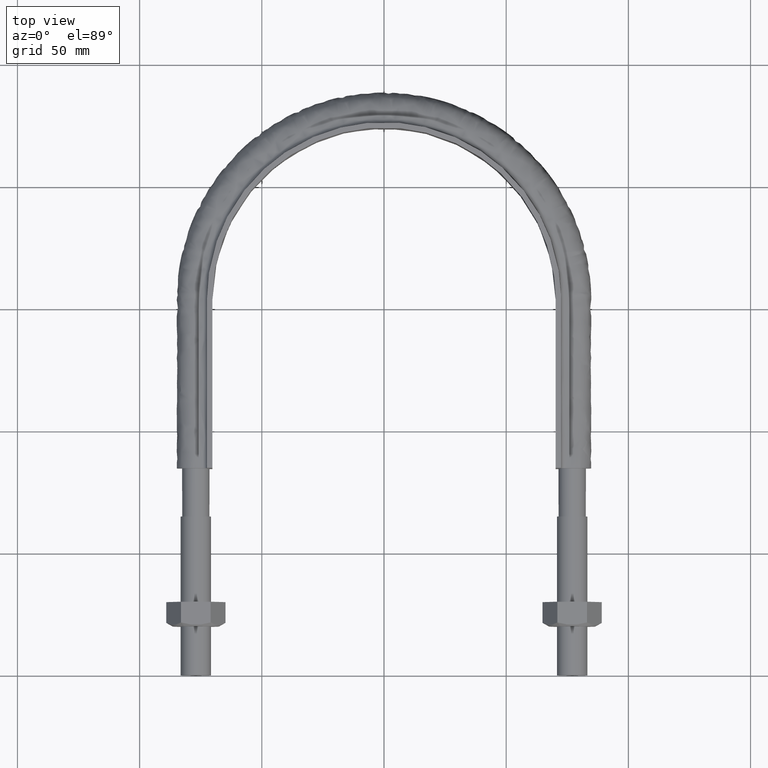
[diagram: clean part render]
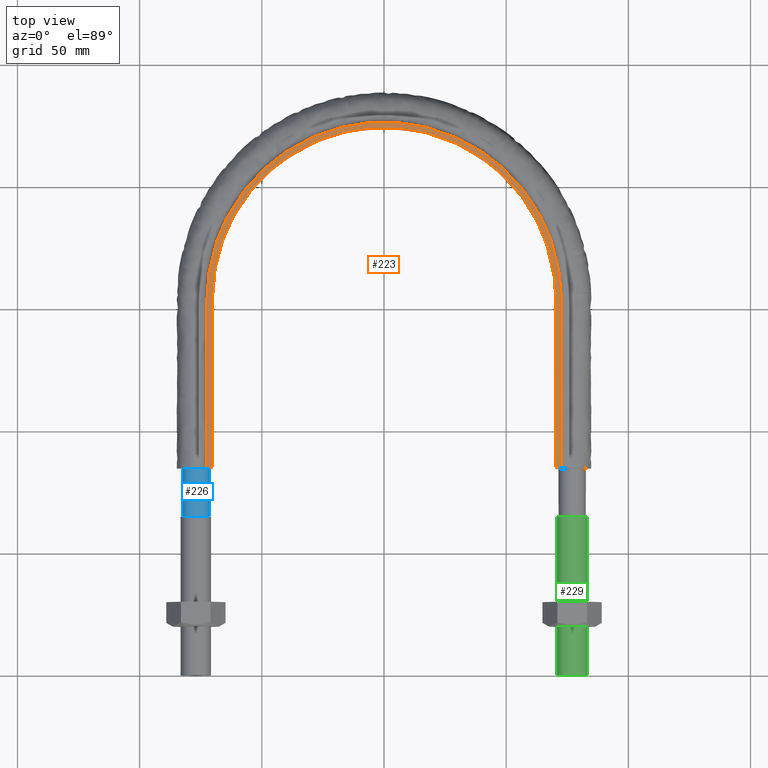
[diagram: same view with three faces highlighted in distinct colors, each labeled with its STEP entity id]
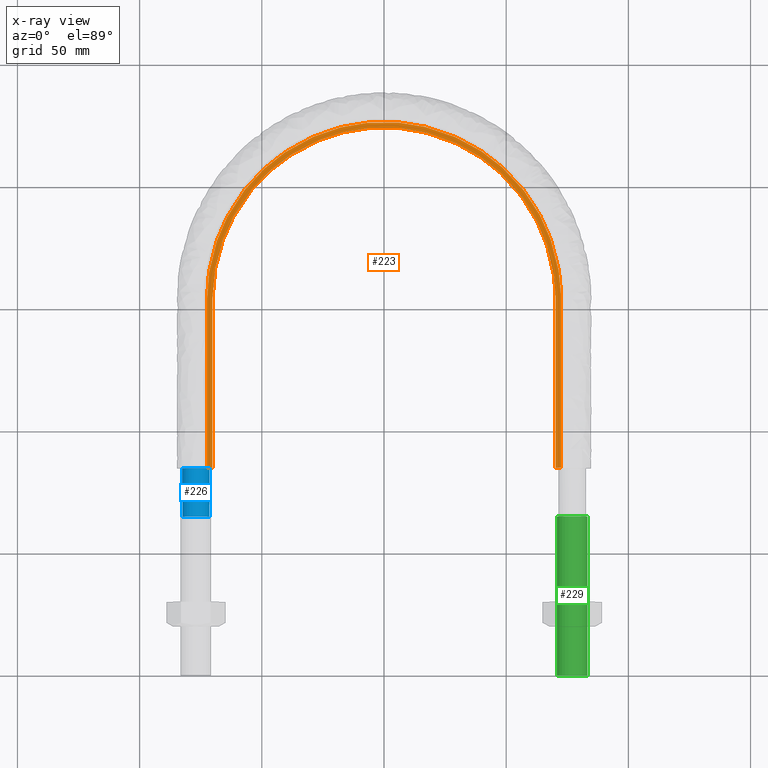
[diagram: x-ray of the same camera — body ghosted, the three highlighted faces saturated]
A machine part, top view with three faces highlighted in distinct colors.
The next image is the same camera in x-ray (body ghosted, the three faces saturated) — at least one of them is partly hidden behind the body in this view.
Their STEP definitions:

[orange] entity #223 — the highlighted planar face has unit normal (0, 0, 1).
#223 = ADVANCED_FACE( '', ( #270 ), #271, .T. );
#270 = FACE_OUTER_BOUND( '', #373, .T. );
#271 = PLANE( '', #374 );
#373 = EDGE_LOOP( '', ( #1354, #1355, #1356, #1357 ) );
#374 = AXIS2_PLACEMENT_3D( '', #1358, #1359, #1360 );
#1354 = ORIENTED_EDGE( '', *, *, #1600, .T. );
#1355 = ORIENTED_EDGE( '', *, *, #1609, .T. );
#1356 = ORIENTED_EDGE( '', *, *, #1607, .T. );
#1357 = ORIENTED_EDGE( '', *, *, #1612, .F. );
#1358 = CARTESIAN_POINT( '', ( 100.000000000000, 284.710000000000, 15.0000000000000 ) );
#1359 = DIRECTION( '', ( 0.000000000000000, 0.000000000000000, 1.00000000000000 ) );
#1360 = DIRECTION( '', ( 1.00000000000000, 0.000000000000000, 0.000000000000000 ) );
#1600 = EDGE_CURVE( '', #1684, #1682, #1685, .T. );
#1607 = EDGE_CURVE( '', #1692, #1696, #1698, .T. );
#1609 = EDGE_CURVE( '', #1682, #1692, #1701, .T. );
#1612 = EDGE_CURVE( '', #1684, #1696, #1704, .T. );
#1682 = VERTEX_POINT( '', #1830 );
#1684 = VERTEX_POINT( '', #1833 );
#1685 = LINE( '', #1834, #1835 );
#1692 = VERTEX_POINT( '', #1883 );
#1696 = VERTEX_POINT( '', #1889 );
#1698 = LINE( '', #1921, #1922 );
#1701 = B_SPLINE_CURVE_WITH_KNOTS( '', 3, ( #1935, #1936, #1937, #1938, #1939, #1940, #1941, #1942, #1943, #1944, #1945, #1946, #1947, #1948, #1949, #1950 ), .UNSPECIFIED., .F., .F., ( 4, 3, 1, 1, 1, 1, 1, 1, 3, 4 ), ( -9.00000000000000, -8.00000000000000, -7.00000000000000, -6.00000000000000, -5.00000000000000, -4.00000000000000, -3.00000000000000, -2.00000000000000, -1.00000000000000, 0.000000000000000 ), .UNSPECIFIED. );
#1704 = B_SPLINE_CURVE_WITH_KNOTS( '', 3, ( #1983, #1984, #1985, #1986, #1987, #1988, #1989, #1990, #1991, #1992, #1993, #1994, #1995, #1996, #1997, #1998 ), .UNSPECIFIED., .F., .F., ( 4, 3, 1, 1, 1, 1, 1, 1, 3, 4 ), ( -9.00000000000000, -8.00000000000000, -7.00000000000000, -6.00000000000000, -5.00000000000000, -4.00000000000000, -3.00000000000000, -2.00000000000000, -1.00000000000000, 0.000000000000000 ), .UNSPECIFIED. );
#1830 = CARTESIAN_POINT( '', ( -70.2500000000000, 84.7100000000000, 15.0000000000000 ) );
#1833 = CARTESIAN_POINT( '', ( -72.4500000000000, 84.7100000000000, 15.0000000000000 ) );
#1834 = CARTESIAN_POINT( '', ( -100.000000000000, 84.7100000000000, 15.0000000000000 ) );
#1835 = VECTOR( '', #2328, 1000.00000000000 );
#1883 = CARTESIAN_POINT( '', ( 70.2500000000000, 84.7100000000000, 15.0000000000000 ) );
#1889 = CARTESIAN_POINT( '', ( 72.4500000000000, 84.7100000000000, 15.0000000000000 ) );
#1921 = CARTESIAN_POINT( '', ( -100.000000000000, 84.7100000000000, 15.0000000000000 ) );
#1922 = VECTOR( '', #2332, 1000.00000000000 );
#1935 = CARTESIAN_POINT( '', ( -70.2500000000000, 84.7100000000000, 15.0000000000000 ) );
#1936 = CARTESIAN_POINT( '', ( -70.2500000000000, 107.726666666667, 15.0000000000000 ) );
#1937 = CARTESIAN_POINT( '', ( -70.2500000000000, 130.743333333333, 15.0000000000000 ) );
#1938 = CARTESIAN_POINT( '', ( -70.2500000000000, 153.760000000000, 15.0000000000000 ) );
#1939 = CARTESIAN_POINT( '', ( -70.2500000000000, 164.249418134732, 15.0000000000000 ) );
#1940 = CARTESIAN_POINT( '', ( -65.4537147955432, 185.288971927909, 15.0000000000000 ) );
#1941 = CARTESIAN_POINT( '', ( -45.2953760364684, 210.556467088273, 15.0000000000000 ) );
#1942 = CARTESIAN_POINT( '', ( -16.1657325420394, 224.587129579273, 15.0000000000000 ) );
#1943 = CARTESIAN_POINT( '', ( 16.1657325420395, 224.587129579273, 15.0000000000000 ) );
#1944 = CARTESIAN_POINT( '', ( 45.2953760364684, 210.556467088273, 15.0000000000000 ) );
#1945 = CARTESIAN_POINT( '', ( 65.4537147955432, 185.288971927909, 15.0000000000000 ) );
#1946 = CARTESIAN_POINT( '', ( 70.2500000000000, 164.249418134732, 15.0000000000000 ) );
#1947 = CARTESIAN_POINT( '', ( 70.2500000000000, 153.760000000000, 15.0000000000000 ) );
#1948 = CARTESIAN_POINT( '', ( 70.2500000000000, 130.743333333333, 15.0000000000000 ) );
#1949 = CARTESIAN_POINT( '', ( 70.2500000000000, 107.726666666667, 15.0000000000000 ) );
#1950 = CARTESIAN_POINT( '', ( 70.2500000000000, 84.7100000000000, 15.0000000000000 ) );
#1983 = CARTESIAN_POINT( '', ( -72.4500000000000, 84.7100000000000, 15.0000000000000 ) );
#1984 = CARTESIAN_POINT( '', ( -72.4500000000000, 107.726666666667, 15.0000000000000 ) );
#1985 = CARTESIAN_POINT( '', ( -72.4500000000000, 130.743333333333, 15.0000000000000 ) );
#1986 = CARTESIAN_POINT( '', ( -72.4500000000000, 153.760000000000, 15.0000000000000 ) );
#1987 = CARTESIAN_POINT( '', ( -72.4500000000000, 164.584175230504, 15.0000000000000 ) );
#1988 = CARTESIAN_POINT( '', ( -67.5035108460798, 186.273453800089, 15.0000000000000 ) );
#1989 = CARTESIAN_POINT( '', ( -46.7138789159022, 212.335910248336, 15.0000000000000 ) );
#1990 = CARTESIAN_POINT( '', ( -16.6719903583026, 226.805050635421, 15.0000000000000 ) );
#1991 = CARTESIAN_POINT( '', ( 16.6719903583027, 226.805050635421, 15.0000000000000 ) );
#1992 = CARTESIAN_POINT( '', ( 46.7138789159023, 212.335910248336, 15.0000000000000 ) );
#1993 = CARTESIAN_POINT( '', ( 67.5035108460798, 186.273453800089, 15.0000000000000 ) );
#1994 = CARTESIAN_POINT( '', ( 72.4500000000000, 164.584175230504, 15.0000000000000 ) );
#1995 = CARTESIAN_POINT( '', ( 72.4500000000000, 153.760000000000, 15.0000000000000 ) );
#1996 = CARTESIAN_POINT( '', ( 72.4500000000000, 130.743333333333, 15.0000000000000 ) );
#1997 = CARTESIAN_POINT( '', ( 72.4500000000000, 107.726666666667, 15.0000000000000 ) );
#1998 = CARTESIAN_POINT( '', ( 72.4500000000000, 84.7100000000000, 15.0000000000000 ) );
#2328 = DIRECTION( '', ( 1.00000000000000, -1.22460635382238E-016, 0.000000000000000 ) );
#2332 = DIRECTION( '', ( 1.00000000000000, -1.22460635382238E-016, 0.000000000000000 ) );

[blue] entity #226 — the highlighted cylindrical surface (bore or boss wall) has radius 5.6 mm, axis along (0, 1, -0).
#226 = ADVANCED_FACE( '', ( #277, #278 ), #279, .T. );
#277 = FACE_OUTER_BOUND( '', #1050, .T. );
#278 = FACE_OUTER_BOUND( '', #1051, .T. );
#279 = CYLINDRICAL_SURFACE( '', #1052, 5.59999999999999 );
#1050 = EDGE_LOOP( '', ( #1367, #1368, #1369, #1370, #1371, #1372, #1373, #1374 ) );
#1051 = EDGE_LOOP( '', ( #1375 ) );
#1052 = AXIS2_PLACEMENT_3D( '', #1376, #1377, #1378 );
#1367 = ORIENTED_EDGE( '', *, *, #1613, .F. );
#1368 = ORIENTED_EDGE( '', *, *, #1614, .F. );
#1369 = ORIENTED_EDGE( '', *, *, #1615, .F. );
#1370 = ORIENTED_EDGE( '', *, *, #1616, .F. );
#1371 = ORIENTED_EDGE( '', *, *, #1617, .F. );
#1372 = ORIENTED_EDGE( '', *, *, #1618, .F. );
#1373 = ORIENTED_EDGE( '', *, *, #1619, .F. );
#1374 = ORIENTED_EDGE( '', *, *, #1620, .F. );
#1375 = ORIENTED_EDGE( '', *, *, #1621, .T. );
#1376 = CARTESIAN_POINT( '', ( -77.0000000000000, 84.7100000000000, -1.46064922852164E-014 ) );
#1377 = DIRECTION( '', ( 2.44921270764475E-016, 1.00000000000000, -3.06151588455594E-016 ) );
#1378 = DIRECTION( '', ( 1.00000000000000, -2.44921270764475E-016, 0.000000000000000 ) );
#1613 = EDGE_CURVE( '', #1705, #1706, #1707, .T. );
#1614 = EDGE_CURVE( '', #1708, #1705, #1709, .T. );
#1615 = EDGE_CURVE( '', #1710, #1708, #1711, .T. );
#1616 = EDGE_CURVE( '', #1712, #1710, #1713, .T. );
#1617 = EDGE_CURVE( '', #1714, #1712, #1715, .T. );
#1618 = EDGE_CURVE( '', #1716, #1714, #1717, .T. );
#1619 = EDGE_CURVE( '', #1718, #1716, #1719, .T. );
#1620 = EDGE_CURVE( '', #1706, #1718, #1720, .T. );
#1621 = EDGE_CURVE( '', #1721, #1721, #1722, .F. );
#1705 = VERTEX_POINT( '', #1999 );
#1706 = VERTEX_POINT( '', #2000 );
#1707 = B_SPLINE_CURVE_WITH_KNOTS( '', 3, ( #2001, #2002, #2003, #2004 ), .UNSPECIFIED., .F., .F., ( 4, 4 ), ( 0.000000000000000, 1.00000000000000 ), .UNSPECIFIED. );
#1708 = VERTEX_POINT( '', #2005 );
#1709 = B_SPLINE_CURVE_WITH_KNOTS( '', 3, ( #2006, #2007, #2008, #2009 ), .UNSPECIFIED., .F., .F., ( 4, 4 ), ( 0.000000000000000, 1.00000000000000 ), .UNSPECIFIED. );
#1710 = VERTEX_POINT( '', #2010 );
#1711 = B_SPLINE_CURVE_WITH_KNOTS( '', 3, ( #2011, #2012, #2013, #2014 ), .UNSPECIFIED., .F., .F., ( 4, 4 ), ( 0.000000000000000, 1.00000000000000 ), .UNSPECIFIED. );
#1712 = VERTEX_POINT( '', #2015 );
#1713 = B_SPLINE_CURVE_WITH_KNOTS( '', 3, ( #2016, #2017, #2018, #2019 ), .UNSPECIFIED., .F., .F., ( 4, 4 ), ( 0.000000000000000, 1.00000000000000 ), .UNSPECIFIED. );
#1714 = VERTEX_POINT( '', #2020 );
#1715 = B_SPLINE_CURVE_WITH_KNOTS( '', 3, ( #2021, #2022, #2023, #2024 ), .UNSPECIFIED., .F., .F., ( 4, 4 ), ( 0.000000000000000, 1.00000000000000 ), .UNSPECIFIED. );
#1716 = VERTEX_POINT( '', #2025 );
#1717 = B_SPLINE_CURVE_WITH_KNOTS( '', 3, ( #2026, #2027, #2028, #2029 ), .UNSPECIFIED., .F., .F., ( 4, 4 ), ( 0.000000000000000, 1.00000000000000 ), .UNSPECIFIED. );
#1718 = VERTEX_POINT( '', #2030 );
#1719 = B_SPLINE_CURVE_WITH_KNOTS( '', 3, ( #2031, #2032, #2033, #2034 ), .UNSPECIFIED., .F., .F., ( 4, 4 ), ( 0.000000000000000, 1.00000000000000 ), .UNSPECIFIED. );
#1720 = B_SPLINE_CURVE_WITH_KNOTS( '', 3, ( #2035, #2036, #2037, #2038 ), .UNSPECIFIED., .F., .F., ( 4, 4 ), ( 0.000000000000000, 1.00000000000000 ), .UNSPECIFIED. );
#1721 = VERTEX_POINT( '', #2039 );
#1722 = CIRCLE( '', #2040, 5.59999999999999 );
#1999 = CARTESIAN_POINT( '', ( -73.0402020253695, 84.7100000000000, 3.95979797465885 ) );
#2000 = CARTESIAN_POINT( '', ( -71.4000000000000, 84.7100000000001, 6.75566890369075E-014 ) );
#2001 = CARTESIAN_POINT( '', ( -73.0402020253695, 84.7100000000000, 3.95979797465885 ) );
#2002 = CARTESIAN_POINT( '', ( -72.0058874503101, 84.7100000000000, 2.92548339960728 ) );
#2003 = CARTESIAN_POINT( '', ( -71.4000000000000, 84.7100000000000, 1.46274169980364 ) );
#2004 = CARTESIAN_POINT( '', ( -71.4000000000000, 84.7100000000000, -1.08420217248550E-016 ) );
#2005 = CARTESIAN_POINT( '', ( -76.9999999999997, 84.7100000000000, 5.59999999999998 ) );
#2006 = CARTESIAN_POINT( '', ( -77.0000000000214, 84.7100000000000, 5.59999999999976 ) );
#2007 = CARTESIAN_POINT( '', ( -75.5372583002225, 84.7100000000000, 5.60000000000529 ) );
#2008 = CARTESIAN_POINT( '', ( -74.0745166004228, 84.7100000000000, 4.99411254970431 ) );
#2009 = CARTESIAN_POINT( '', ( -73.0402020253695, 84.7100000000000, 3.95979797465885 ) );
#2010 = CARTESIAN_POINT( '', ( -80.9597979746449, 84.7100000000000, 3.95979797464440 ) );
#2011 = CARTESIAN_POINT( '', ( -80.9597979746448, 84.7100000000001, 3.95979797464453 ) );
#2012 = CARTESIAN_POINT( '', ( -79.9254833995940, 84.7100000000000, 4.99411254969541 ) );
#2013 = CARTESIAN_POINT( '', ( -78.4627416997969, 84.7100000000000, 5.60000000000004 ) );
#2014 = CARTESIAN_POINT( '', ( -76.9999999999998, 84.7100000000000, 5.59999999999999 ) );
#2015 = CARTESIAN_POINT( '', ( -82.6000000000000, 84.7100000000000, 1.41965139748640E-014 ) );
#2016 = CARTESIAN_POINT( '', ( -82.6000000000000, 84.7100000000000, 1.77311529707622E-011 ) );
#2017 = CARTESIAN_POINT( '', ( -82.5999999999950, 84.7100000000000, 1.46274169980867 ) );
#2018 = CARTESIAN_POINT( '', ( -81.9941125496913, 84.7100000000000, 2.92548339959784 ) );
#2019 = CARTESIAN_POINT( '', ( -80.9597979746449, 84.7100000000000, 3.95979797464438 ) );
#2020 = CARTESIAN_POINT( '', ( -80.9597979746507, 84.7100000000000, -3.95979797463863 ) );
#2021 = CARTESIAN_POINT( '', ( -80.9597979746648, 84.7100000000000, -3.95979797462484 ) );
#2022 = CARTESIAN_POINT( '', ( -81.9941125497069, 84.7100000000000, -2.92548339957214 ) );
#2023 = CARTESIAN_POINT( '', ( -82.6000000000050, 84.7100000000000, -1.46274169977763 ) );
#2024 = CARTESIAN_POINT( '', ( -82.6000000000000, 84.7100000000000, 1.81433471677582E-011 ) );
#2025 = CARTESIAN_POINT( '', ( -77.0000000000206, 84.7100000000000, -5.60000000000001 ) );
#2026 = CARTESIAN_POINT( '', ( -77.0000000000299, 84.7100000000000, -5.60000000000009 ) );
#2027 = CARTESIAN_POINT( '', ( -78.4627416998191, 84.7100000000000, -5.59999999999199 ) );
#2028 = CARTESIAN_POINT( '', ( -79.9254833996059, 84.7100000000000, -4.99411254968672 ) );
#2029 = CARTESIAN_POINT( '', ( -80.9597979746507, 84.7100000000000, -3.95979797463858 ) );
#2030 = CARTESIAN_POINT( '', ( -73.0402020253552, 84.7100000000000, -3.95979797464450 ) );
#2031 = CARTESIAN_POINT( '', ( -73.0402020253947, 84.7100000000000, -3.95979797468435 ) );
#2032 = CARTESIAN_POINT( '', ( -74.0745166004467, 84.7100000000000, -4.99411254971508 ) );
#2033 = CARTESIAN_POINT( '', ( -75.5372583002329, 84.7100000000000, -5.60000000000568 ) );
#2034 = CARTESIAN_POINT( '', ( -77.0000000000206, 84.7100000000000, -5.59999999999999 ) );
#2035 = CARTESIAN_POINT( '', ( -71.4000000000000, 84.7100000000000, 6.19079440489223E-014 ) );
#2036 = CARTESIAN_POINT( '', ( -71.4000000000000, 84.7100000000000, -1.46274169979686 ) );
#2037 = CARTESIAN_POINT( '', ( -72.0058874503045, 84.7100000000000, -2.92548339959379 ) );
#2038 = CARTESIAN_POINT( '', ( -73.0402020253552, 84.7100000000000, -3.95979797464454 ) );
#2039 = CARTESIAN_POINT( '', ( -77.0000000000000, 65.0000000000000, -5.60000000000000 ) );
#2040 = AXIS2_PLACEMENT_3D( '', #2333, #2334, #2335 );
#2333 = CARTESIAN_POINT( '', ( -77.0000000000000, 65.0000000000000, -8.57224447675665E-015 ) );
#2334 = DIRECTION( '', ( -2.44921270764475E-016, -1.00000000000000, 3.06151588455594E-016 ) );
#2335 = DIRECTION( '', ( 0.000000000000000, -3.06151588455594E-016, -1.00000000000000 ) );

[green] entity #229 — the highlighted cylindrical surface (bore or boss wall) has radius 6.25 mm, axis along (0, 1, -0).
#229 = ADVANCED_FACE( '', ( #286, #287 ), #288, .T. );
#286 = FACE_OUTER_BOUND( '', #1234, .T. );
#287 = FACE_OUTER_BOUND( '', #1235, .T. );
#288 = CYLINDRICAL_SURFACE( '', #1236, 6.25000000000001 );
#1234 = EDGE_LOOP( '', ( #1407 ) );
#1235 = EDGE_LOOP( '', ( #1408 ) );
#1236 = AXIS2_PLACEMENT_3D( '', #1409, #1410, #1411 );
#1407 = ORIENTED_EDGE( '', *, *, #1631, .T. );
#1408 = ORIENTED_EDGE( '', *, *, #1632, .F. );
#1409 = CARTESIAN_POINT( '', ( 77.0000000000000, 65.0000000000000, -1.98998532496136E-014 ) );
#1410 = DIRECTION( '', ( 2.44921270764475E-016, 1.00000000000000, -3.06151588455594E-016 ) );
#1411 = DIRECTION( '', ( 1.00000000000000, -2.44921270764475E-016, 0.000000000000000 ) );
#1631 = EDGE_CURVE( '', #1741, #1741, #1742, .T. );
#1632 = EDGE_CURVE( '', #1743, #1743, #1744, .T. );
#1741 = VERTEX_POINT( '', #2083 );
#1742 = CIRCLE( '', #2084, 6.25000000000001 );
#1743 = VERTEX_POINT( '', #2085 );
#1744 = CIRCLE( '', #2086, 6.25000000000001 );
#2083 = CARTESIAN_POINT( '', ( 77.0000000000000, 65.0000000000000, -6.25000000000003 ) );
#2084 = AXIS2_PLACEMENT_3D( '', #2339, #2340, #2341 );
#2085 = CARTESIAN_POINT( '', ( 77.0000000000000, -1.57912352356619E-014, -6.25000000000001 ) );
#2086 = AXIS2_PLACEMENT_3D( '', #2342, #2343, #2344 );
#2339 = CARTESIAN_POINT( '', ( 77.0000000000000, 65.0000000000000, -1.98998532496136E-014 ) );
#2340 = DIRECTION( '', ( -2.44921270764475E-016, -1.00000000000000, 3.06151588455594E-016 ) );
#2341 = DIRECTION( '', ( 0.000000000000000, -3.06151588455594E-016, -1.00000000000000 ) );
#2342 = CARTESIAN_POINT( '', ( 77.0000000000000, -1.38777878078145E-014, 1.23259516440783E-029 ) );
#2343 = DIRECTION( '', ( -2.44921270764475E-016, -1.00000000000000, 3.06151588455594E-016 ) );
#2344 = DIRECTION( '', ( 0.000000000000000, -3.06151588455594E-016, -1.00000000000000 ) );